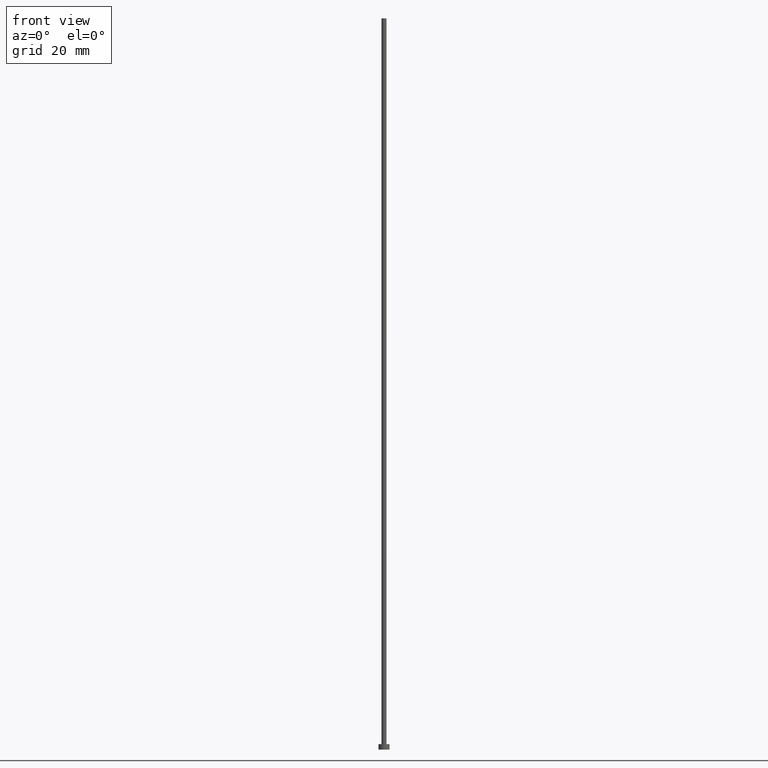
[diagram: clean part render]
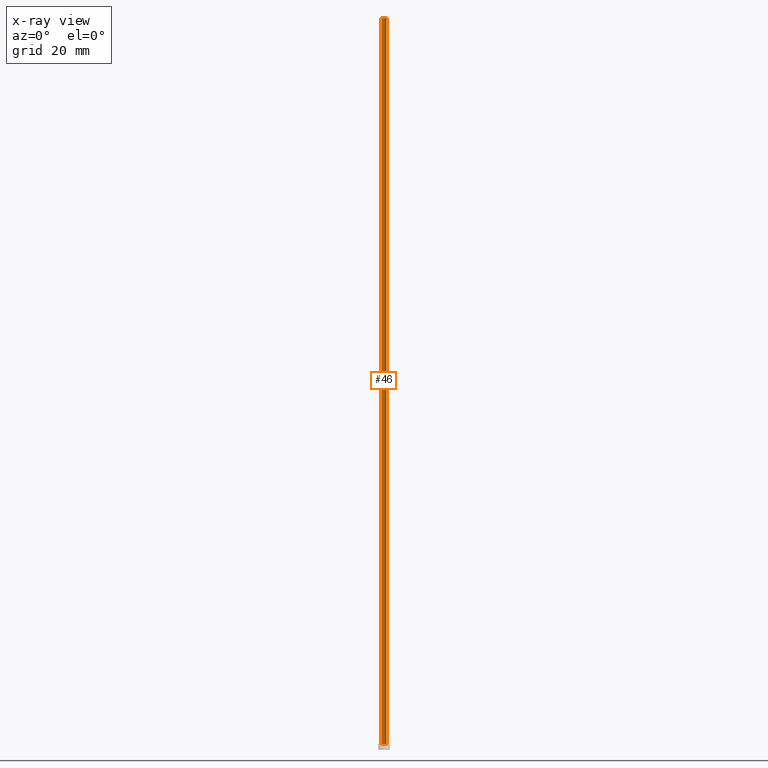
[diagram: x-ray — body ghosted, one internal face saturated and labeled with its STEP entity id]
A machine part, front view, then the same camera in x-ray: the body is ghosted and one INTERNAL B-rep face — a face not visible from any outside direction — is saturated and labeled: STEP entity #46.
In plain terms, the highlighted cylindrical surface (edge-blend (fillet) strip) has radius 0.7 mm, axis along (-0, -0, -1).
Its self-contained STEP definition (entity closure, byte-faithful):
#1 = VERTEX_POINT ( 'NONE', #242 ) ;
#2 = DIRECTION ( 'NONE',  ( 1.000000000000000000, 0.000000000000000000, 0.000000000000000000 ) ) ;
#3 = DIRECTION ( 'NONE',  ( 0.000000000000000000, 0.000000000000000000, 1.000000000000000000 ) ) ;
#34 = AXIS2_PLACEMENT_3D ( 'NONE', #179, #3, #238 ) ;
#39 = LINE ( 'NONE', #180, #210 ) ;
#46 = ADVANCED_FACE ( 'NONE', ( #167 ), #199, .T. ) ;
#60 = EDGE_CURVE ( 'NONE', #1, #151, #79, .T. ) ;
#65 = DIRECTION ( 'NONE',  ( -0.000000000000000000, -0.000000000000000000, -1.000000000000000000 ) ) ;
#77 = ORIENTED_EDGE ( 'NONE', *, *, #60, .F. ) ;
#79 = CIRCLE ( 'NONE', #34, 0.6999999999999999556 ) ;
#83 = ORIENTED_EDGE ( 'NONE', *, *, #253, .F. ) ;
#90 = ORIENTED_EDGE ( 'NONE', *, *, #222, .T. ) ;
#96 = CARTESIAN_POINT ( 'NONE',  ( 0.000000000000000000, 0.000000000000000000, 1.500000000000000000 ) ) ;
#99 = DIRECTION ( 'NONE',  ( -1.000000000000000000, 0.000000000000000000, 0.000000000000000000 ) ) ;
#106 = ORIENTED_EDGE ( 'NONE', *, *, #160, .T. ) ;
#127 = DIRECTION ( 'NONE',  ( 0.000000000000000000, 0.000000000000000000, 1.000000000000000000 ) ) ;
#139 = DIRECTION ( 'NONE',  ( -0.000000000000000000, -0.000000000000000000, -1.000000000000000000 ) ) ;
#141 = CIRCLE ( 'NONE', #211, 0.6999999999999999556 ) ;
#151 = VERTEX_POINT ( 'NONE', #159 ) ;
#157 = CARTESIAN_POINT ( 'NONE',  ( 0.6999999999999999556, 8.572527594031471957E-17, 200.0000000000000000 ) ) ;
#158 = AXIS2_PLACEMENT_3D ( 'NONE', #240, #65, #99 ) ;
#159 = CARTESIAN_POINT ( 'NONE',  ( -0.6999999999999999556, 0.000000000000000000, 200.0000000000000000 ) ) ;
#160 = EDGE_CURVE ( 'NONE', #187, #244, #141, .T. ) ;
#163 = LINE ( 'NONE', #157, #247 ) ;
#167 = FACE_OUTER_BOUND ( 'NONE', #208, .T. ) ;
#176 = CARTESIAN_POINT ( 'NONE',  ( 0.6999999999999999556, 8.572527594031471957E-17, 1.500000000000000000 ) ) ;
#179 = CARTESIAN_POINT ( 'NONE',  ( 0.000000000000000000, 0.000000000000000000, 200.0000000000000000 ) ) ;
#180 = CARTESIAN_POINT ( 'NONE',  ( -0.6999999999999999556, 0.000000000000000000, 200.0000000000000000 ) ) ;
#187 = VERTEX_POINT ( 'NONE', #176 ) ;
#199 = CYLINDRICAL_SURFACE ( 'NONE', #158, 0.6999999999999999556 ) ;
#208 = EDGE_LOOP ( 'NONE', ( #77, #90, #106, #83 ) ) ;
#210 = VECTOR ( 'NONE', #215, 1000.000000000000000 ) ;
#211 = AXIS2_PLACEMENT_3D ( 'NONE', #96, #127, #2 ) ;
#215 = DIRECTION ( 'NONE',  ( -0.000000000000000000, -0.000000000000000000, -1.000000000000000000 ) ) ;
#222 = EDGE_CURVE ( 'NONE', #1, #187, #163, .T. ) ;
#238 = DIRECTION ( 'NONE',  ( 1.000000000000000000, 0.000000000000000000, 0.000000000000000000 ) ) ;
#240 = CARTESIAN_POINT ( 'NONE',  ( 0.000000000000000000, 0.000000000000000000, 200.0000000000000000 ) ) ;
#242 = CARTESIAN_POINT ( 'NONE',  ( 0.6999999999999999556, 8.572527594031471957E-17, 200.0000000000000000 ) ) ;
#244 = VERTEX_POINT ( 'NONE', #252 ) ;
#247 = VECTOR ( 'NONE', #139, 1000.000000000000000 ) ;
#252 = CARTESIAN_POINT ( 'NONE',  ( -0.6999999999999999556, 0.000000000000000000, 1.500000000000000000 ) ) ;
#253 = EDGE_CURVE ( 'NONE', #151, #244, #39, .T. ) ;